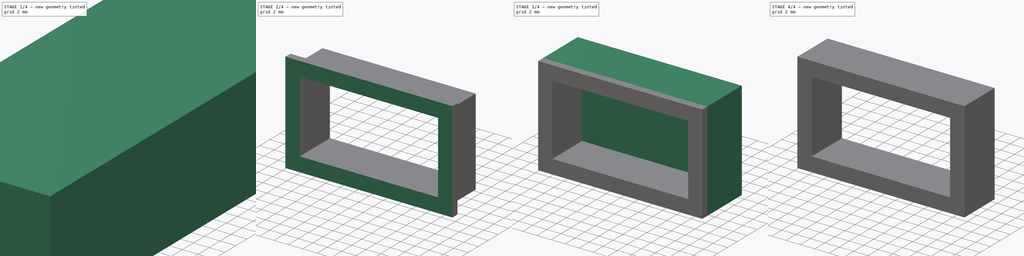
[diagram: build sequence overview — one tinted view per stage of 4, left to right]
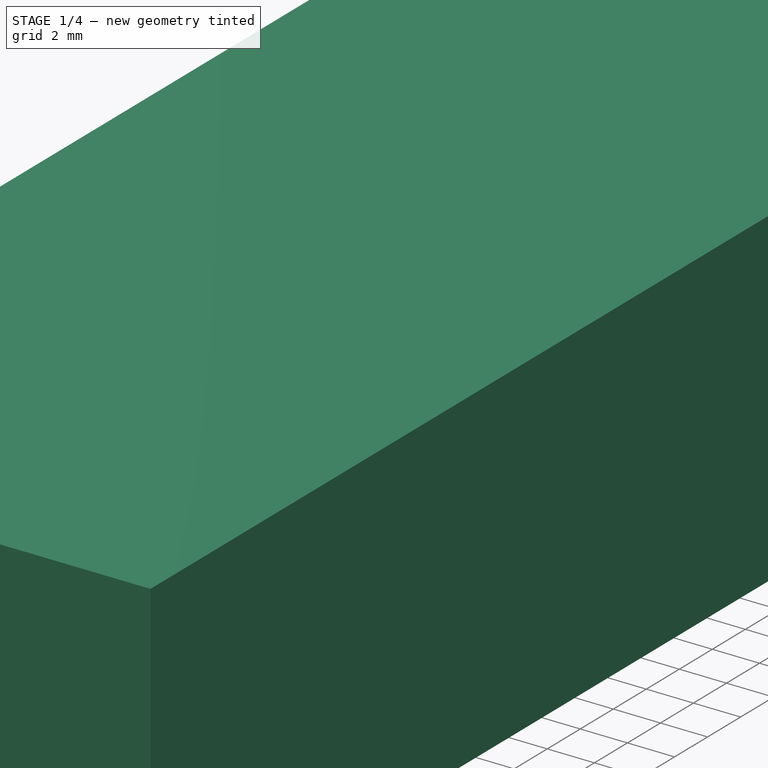
[diagram: stage 1 of 4 — iso view after this stage's code; geometry added in this stage tinted green]
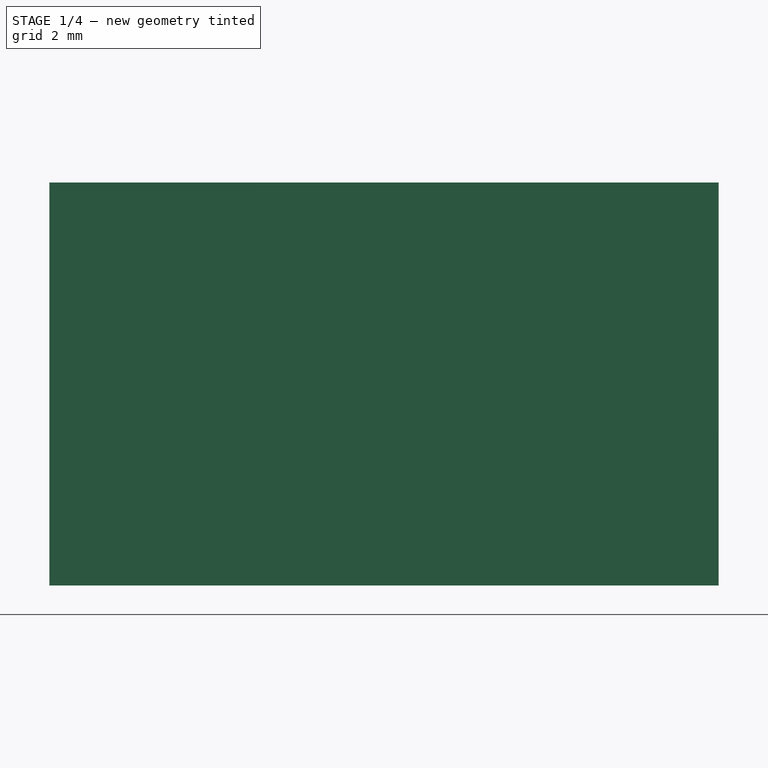
[diagram: stage 1 of 4 — front view after this stage's code; geometry added in this stage tinted green]
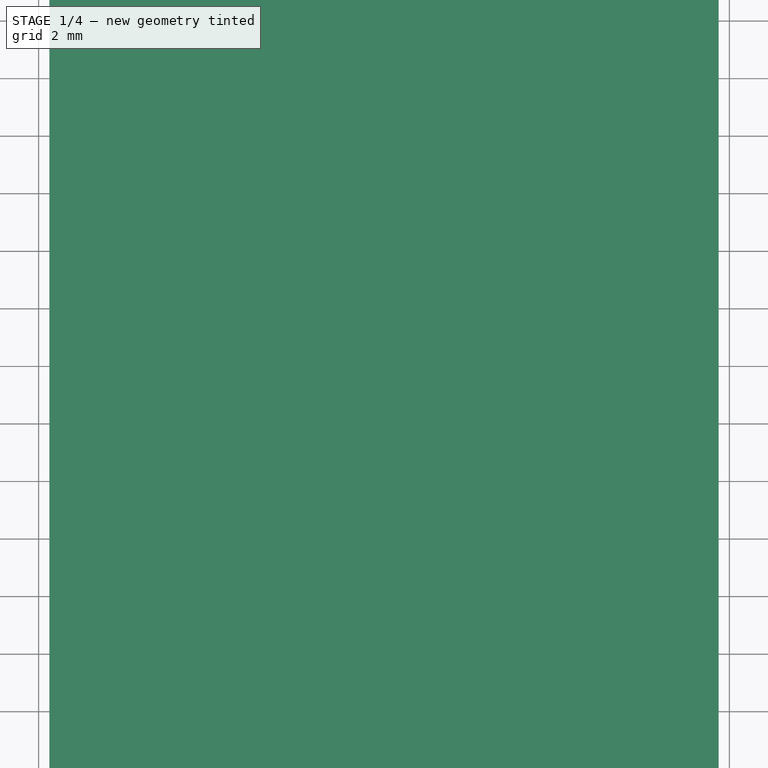
[diagram: stage 1 of 4 — top view after this stage's code; geometry added in this stage tinted green]
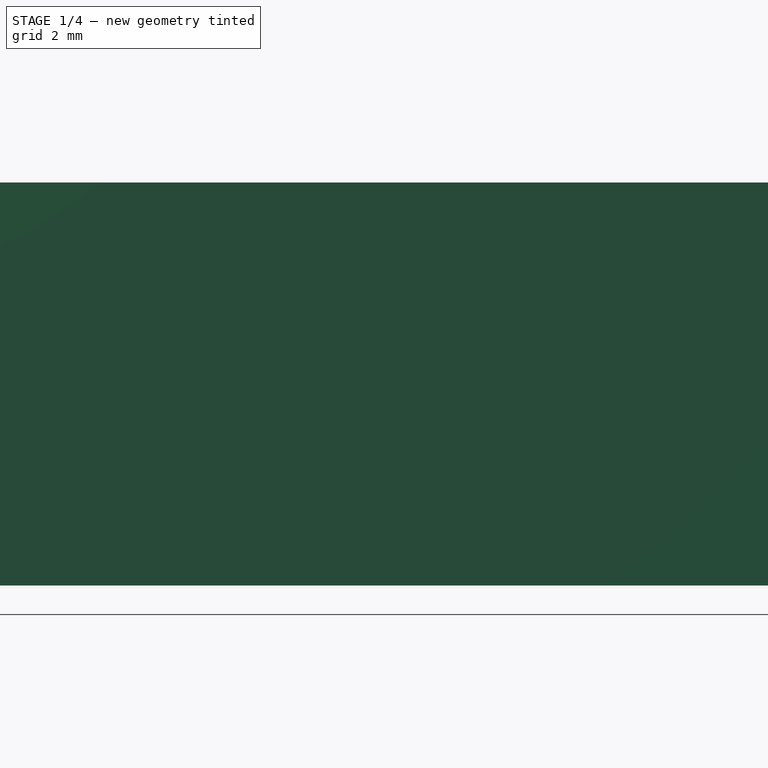
[diagram: stage 1 of 4 — right view after this stage's code; geometry added in this stage tinted green]
FCSTD DOCUMENT  (FreeCAD 1.1R39288 (Git))
Label:  корпус-(тест)
License: All rights reserved
LicenseURL: https://en.wikipedia.org/wiki/All_rights_reserved
objects: Sketcher::SketchObject×6, Part::FeaturePython×4, PartDesign::Pad×3, PartDesign::Pocket×3, PartDesign::Body×2, Part::Plane×2, PartDesign::Thickness×1
note: 41 computed .brp shape members not serialized (recipe doc carries the construction recipe); baked Part::Feature solids carry a one-line shape summary decoded from their .brp

FEATURE [PartDesign::Body] Body002  label="USB"
  AllowCompound = false
  Group = -> [Sketch003,Pad003,Sketch004,Pad004,Sketch005,Pocket]
  Origin = -> Origin002
  Tip = -> Pocket
FEATURE [Sketcher::SketchObject] Sketch007  label="Брусок"
  ArcFitTolerance = 1e-06
  AttachmentOffset = pos=(0,0,2) rot=(0,0,1;0rad)
  AttachmentSupport = -> [XZ_Plane004]
  FullyConstrained = true
  MakeInternals = false
  MapMode = 5
  Placement = pos=(0,-2,4e-16) rot=(1,0,0;1.5708rad)
  sketch-geometry (4):
    g0: LineSegment StartX=-11.625 StartY=7 StartZ=0 EndX=-11.625 EndY=-7 EndZ=0
    g1: LineSegment StartX=-11.625 StartY=-7 StartZ=0 EndX=11.625 EndY=-7 EndZ=0
    g2: LineSegment StartX=11.625 StartY=-7 StartZ=0 EndX=11.625 EndY=7 EndZ=0
    g3: LineSegment StartX=11.625 StartY=7 StartZ=0 EndX=-11.625 EndY=7 EndZ=0
  constraints (11):
    c: Coincident(g0,g1)
    c: Coincident(g1,g2)
    c: Coincident(g2,g3)
    c: Coincident(g3,g0)
    c: Vertical(g0)
    c: Vertical(g2)
    c: Horizontal(g1)
    c: Horizontal(g3)
    c: DistanceX(g3,g3) = 23.25
    c: DistanceY(g0,g0) = 14
    c: Symmetric(g0,g2,g-1)
FEATURE [PartDesign::Pad] Pad005  label="Выдавливание002"
  Direction = (0,-1,2e-16)
  Length = 61.5
  Length2 = 10
  Placement = pos=(0,0,0) rot=(1,0,0;1.5708rad)
  Profile = -> Sketch007
  ReferenceAxis = -> Sketch007 [N_Axis]
  Refine = true
  Suppressed = false
  Type = 0
FEATURE [PartDesign::Thickness] Thickness  label="Полый брусок"
  Base = -> Pad005 [Face5]
  BaseFeature = -> Pad005
  Intersection = false
  Join = 1
  Mode = 0
  Refine = true
  Reversed = true
  SupportTransform = false
  Suppressed = false
  Value = 2
FEATURE [Sketcher::SketchObject] Sketch008  label="Профиль соеденения"
  ArcFitTolerance = 1e-06
  AttachmentSupport = -> [Thickness]
  ExternalGeometry = -> [Thickness]
  FullyConstrained = true
  MakeInternals = false
  MapMode = 5
  Placement = pos=(0,-2,5e-16) rot=(0,0.707107,0.707107;3.14159rad)
  sketch-geometry (10):
    g0: LineSegment StartX=-11.625 StartY=7 StartZ=0 EndX=-11.625 EndY=-7 EndZ=0
    g1: LineSegment StartX=-11.625 StartY=-7 StartZ=0 EndX=11.625 EndY=-7 EndZ=0
    g2: LineSegment StartX=11.625 StartY=-7 StartZ=0 EndX=11.625 EndY=7 EndZ=0
    g3: LineSegment StartX=11.625 StartY=7 StartZ=0 EndX=-11.625 EndY=7 EndZ=0
    g4: LineSegment StartX=-10.665 StartY=6.04 StartZ=0 EndX=-10.665 EndY=-6.04 EndZ=0
    g5: LineSegment StartX=-10.665 StartY=-6.04 StartZ=0 EndX=10.665 EndY=-6.04 EndZ=0
    g6: LineSegment StartX=10.665 StartY=-6.04 StartZ=0 EndX=10.665 EndY=6.04 EndZ=0
    g7: LineSegment StartX=10.665 StartY=6.04 StartZ=0 EndX=-10.665 EndY=6.04 EndZ=0
    g8: LineSegment [constr] StartX=-11.625 StartY=6.04 StartZ=0 EndX=-10.665 EndY=6.04 EndZ=0
    g9: LineSegment [constr] StartX=-10.665 StartY=7 StartZ=0 EndX=-10.665 EndY=6.04 EndZ=0
  constraints (27):
    c: Coincident(g0,g1)
    c: Coincident(g1,g2)
    c: Coincident(g2,g3)
    c: Coincident(g3,g0)
    c: Vertical(g0)
    c: Vertical(g2)
    c: Horizontal(g1)
    c: Horizontal(g3)
    c: Symmetric(g0,g1,g-1)
    c: Coincident(g1,g-4)
    c: Coincident(g4,g5)
    c: Coincident(g5,g6)
    c: Coincident(g6,g7)
    c: Coincident(g7,g4)
    c: Vertical(g4)
    c: Vertical(g6)
    c: Horizontal(g5)
    c: Horizontal(g7)
    c: Symmetric(g4,g5,g-1)
    c: PointOnObject(g8,g0)
    c: Coincident(g8,g4)
    c: Horizontal(g8)
    c: PointOnObject(g9,g3)
    c: Coincident(g9,g4)
    c: Vertical(g9)
    c: Equal(g8,g9)
    c: DistanceX(g8,g8) = 0.96
FEATURE [PartDesign::Pocket] Pocket001  label="Вырез профиля крепления"
  BaseFeature = -> Thickness
  Direction = (0,-1,2e-16)
  Length = 5
  Length2 = 5
  Profile = -> Sketch008
  ReferenceAxis = -> Sketch008 [N_Axis]
  Refine = true
  Suppressed = false
  Type = 0
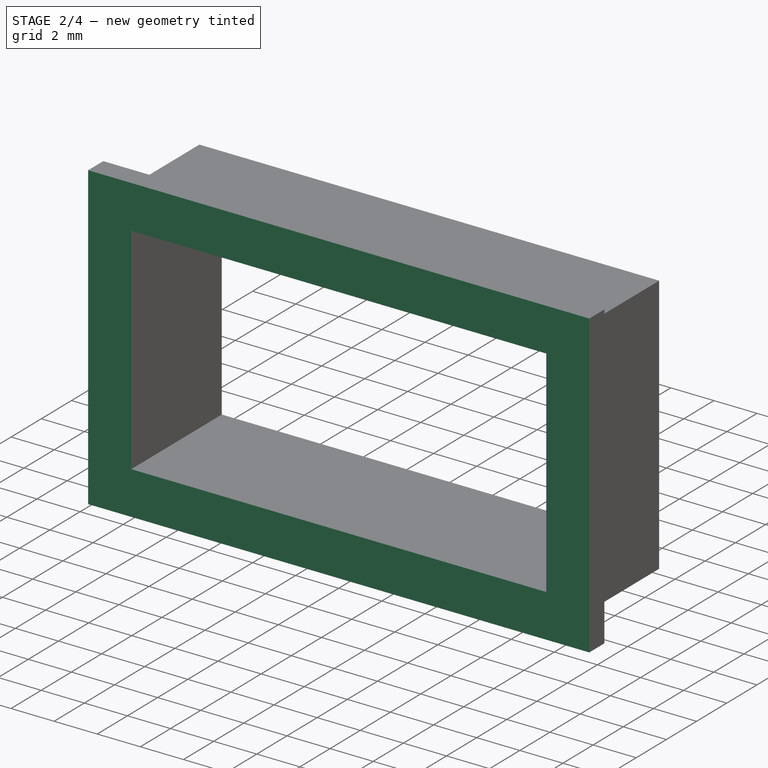
[diagram: stage 2 of 4 — iso view after this stage's code; geometry added in this stage tinted green]
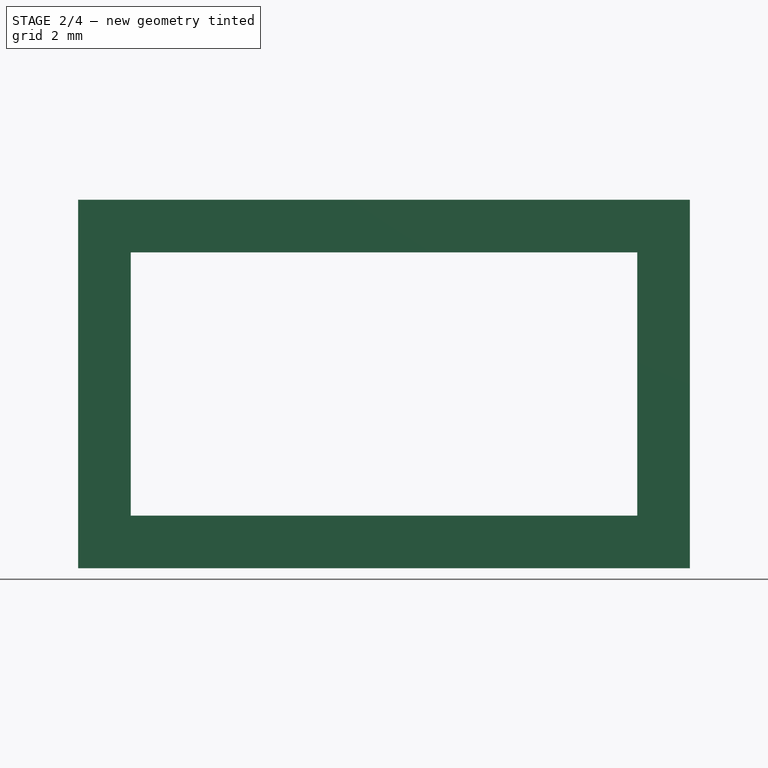
[diagram: stage 2 of 4 — front view after this stage's code; geometry added in this stage tinted green]
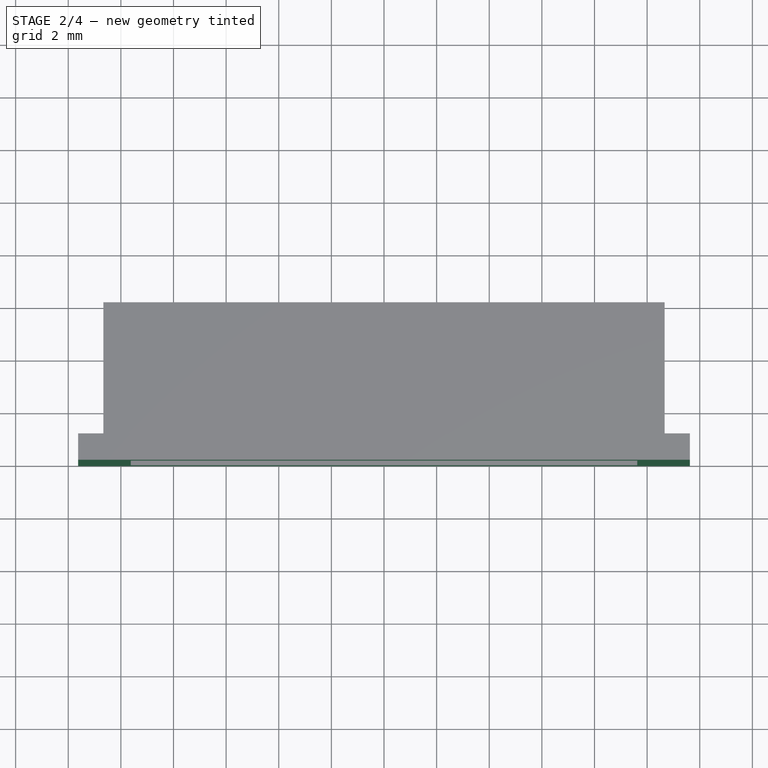
[diagram: stage 2 of 4 — top view after this stage's code; geometry added in this stage tinted green]
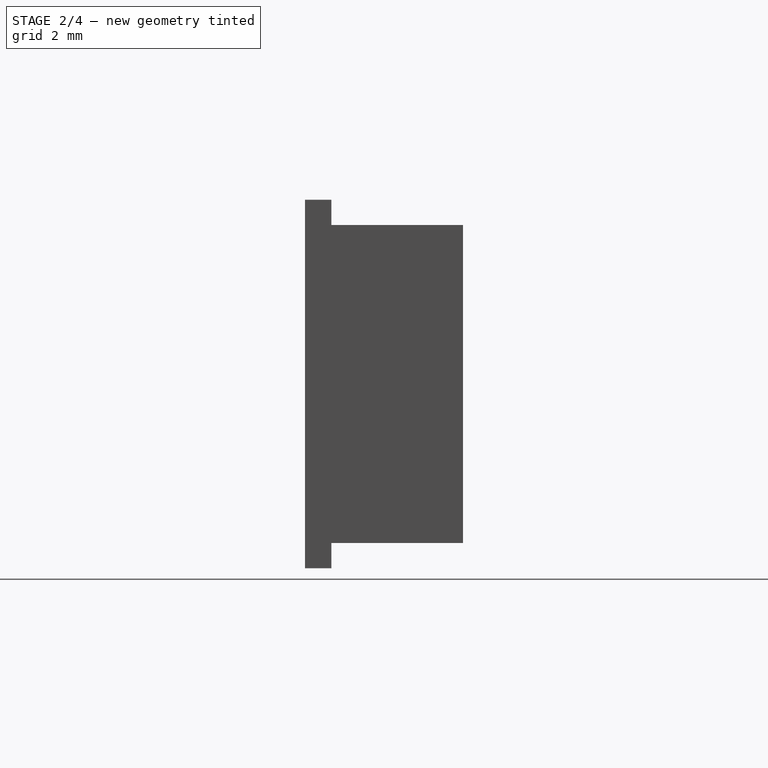
[diagram: stage 2 of 4 — right view after this stage's code; geometry added in this stage tinted green]
FEATURE [Sketcher::SketchObject] Sketch009  label="Профиль антенны"
  ArcFitTolerance = 1e-06
  AttachmentSupport = -> [Pocket001]
  FullyConstrained = true
  MakeInternals = false
  MapMode = 5
  Placement = pos=(0,-63.5,1.52e-14) rot=(1,0,0;1.5708rad)
  sketch-geometry (1):
    g0: Circle CenterX=0 CenterY=0 CenterZ=0 NormalX=0 NormalY=0 NormalZ=1 AngleXU=0 Radius=3.3
  constraints (2):
    c: Coincident(g0,g-1)
    c: Diameter(g0) = 6.6
FEATURE [PartDesign::Pocket] Pocket002  label="Вырез профиля антенны"
  BaseFeature = -> Pocket001
  Direction = (0,1,-2e-16)
  Length = 5
  Length2 = 5
  Profile = -> Sketch009
  ReferenceAxis = -> Sketch009 [N_Axis]
  Refine = true
  Suppressed = false
  Type = 1
FEATURE [Part::FeaturePython] Slice001  # WARN: FeaturePython — macro-defined, semantics opaque (R4)
  Base = -> Body004
  Mode = 1
  Tolerance = 0
  Tools = -> [Plane001]
FEATURE [Part::FeaturePython] Slice001_child0  label="Slice001.0"  # WARN: FeaturePython — macro-defined, semantics opaque (R4)
  Base = -> Slice001
  FilterType = 1
  Invert = false
  OverrideMaxVal = 0
  WindowFrom = 80
  WindowTo = 100
  items = 0
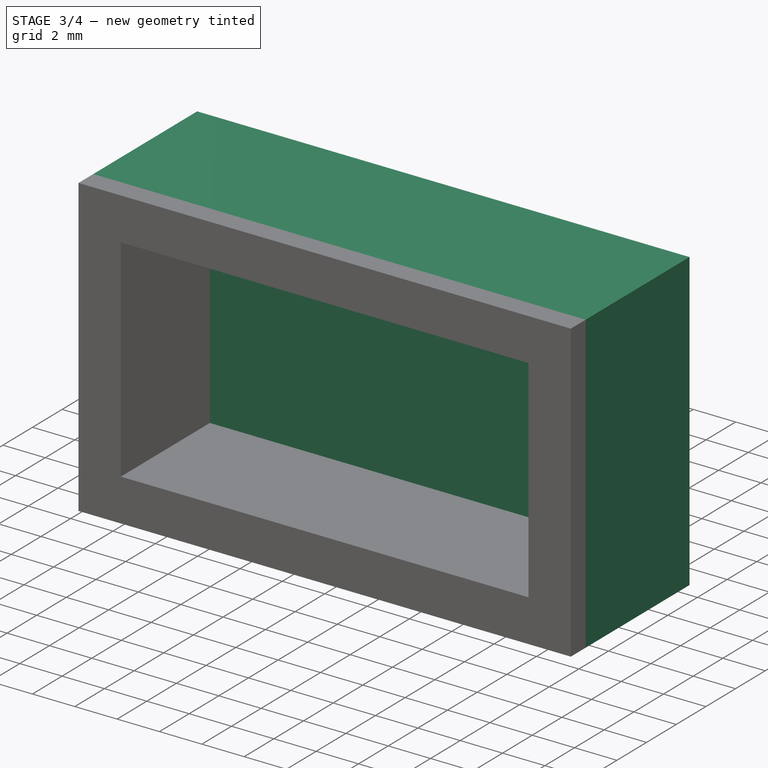
[diagram: stage 3 of 4 — iso view after this stage's code; geometry added in this stage tinted green]
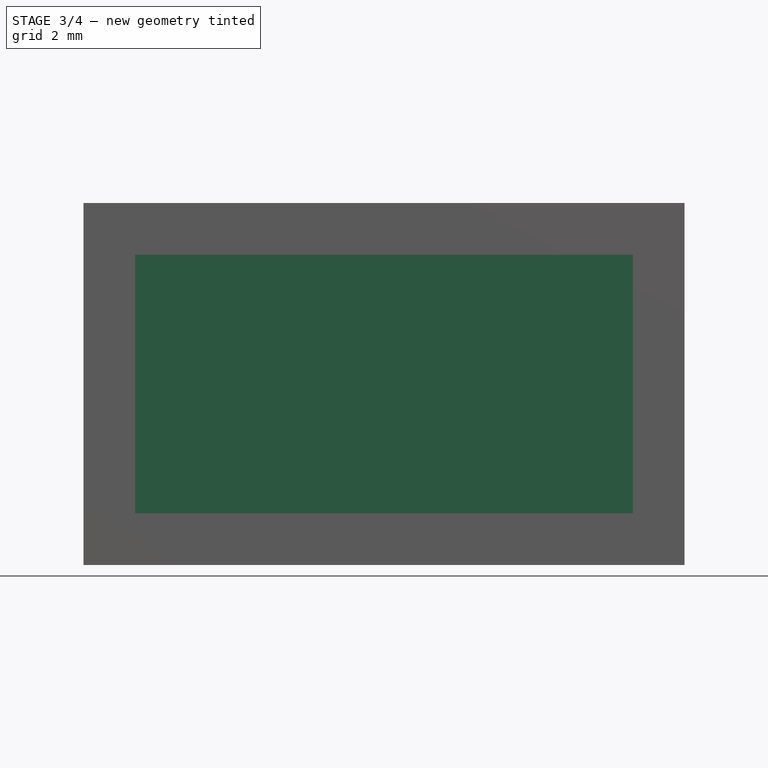
[diagram: stage 3 of 4 — front view after this stage's code; geometry added in this stage tinted green]
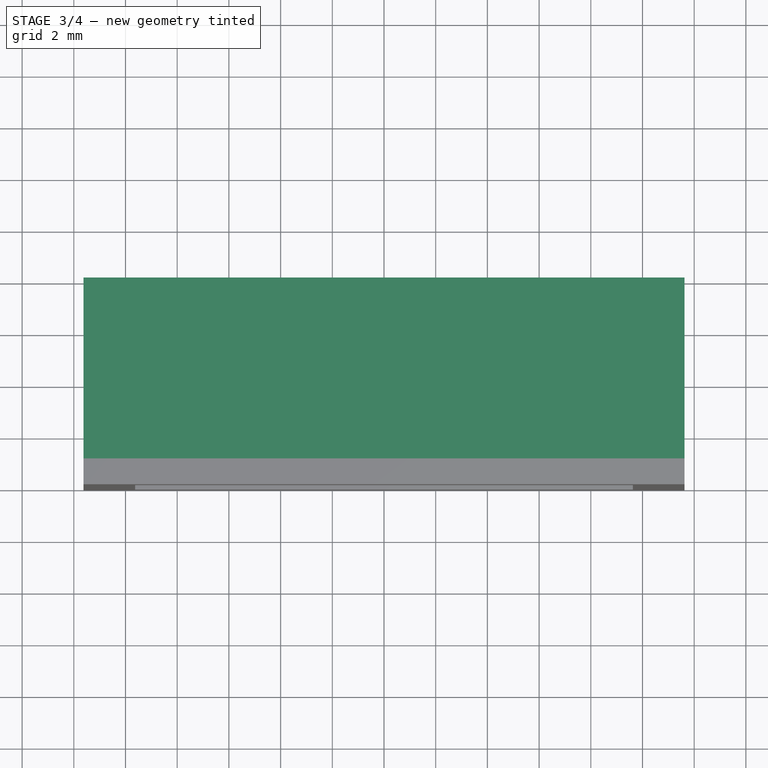
[diagram: stage 3 of 4 — top view after this stage's code; geometry added in this stage tinted green]
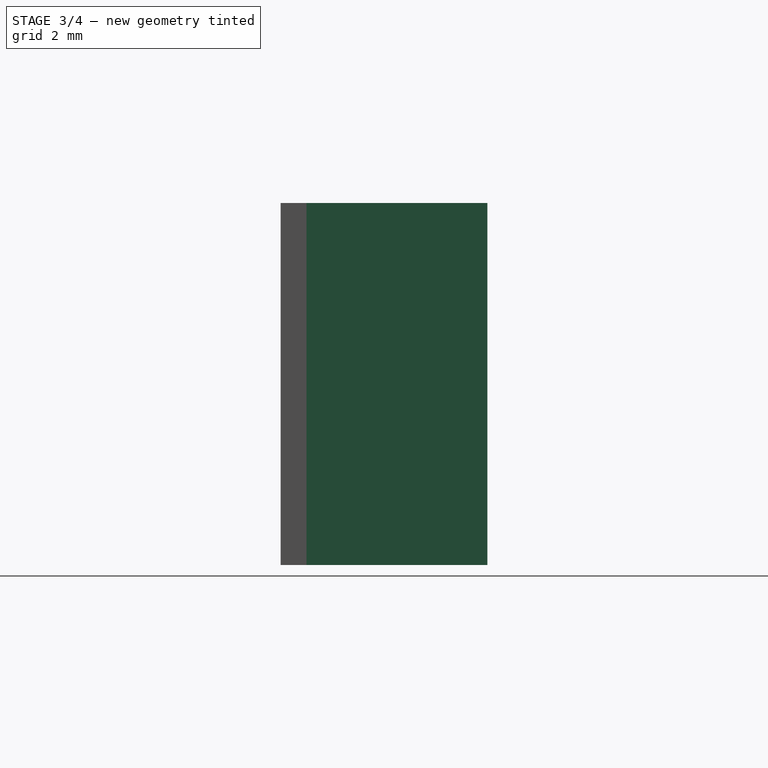
[diagram: stage 3 of 4 — right view after this stage's code; geometry added in this stage tinted green]
FEATURE [Sketcher::SketchObject] Sketch003  label="Вид сверху"
  ArcFitTolerance = 1e-06
  AttachmentSupport = -> [XY_Plane002]
  FullyConstrained = false
  MakeInternals = false
  MapMode = 5
  sketch-geometry (12):
    g0: LineSegment [constr] StartX=-9.625 StartY=0 StartZ=0 EndX=-9.625 EndY=-0.788468 EndZ=0
    g1: LineSegment [constr] StartX=-9.625 StartY=-0.788468 StartZ=0 EndX=9.625 EndY=-0.788468 EndZ=0
    g2: LineSegment [constr] StartX=9.625 StartY=-0.788468 StartZ=0 EndX=9.625 EndY=-8e-16 EndZ=0
    g3: LineSegment [constr] StartX=9.625 StartY=-8e-16 StartZ=0 EndX=-9.625 EndY=0 EndZ=0
    g4: LineSegment StartX=11.625 StartY=0 StartZ=0 EndX=-11.625 EndY=0 EndZ=0
    g5: LineSegment StartX=-11.625 StartY=0 StartZ=0 EndX=-11.625 EndY=-7 EndZ=0
    g6: LineSegment StartX=-11.625 StartY=-7 StartZ=0 EndX=-10.625 EndY=-7 EndZ=0
    g7: LineSegment StartX=-10.625 StartY=-2 StartZ=0 EndX=10.625 EndY=-2 EndZ=0
    g8: LineSegment StartX=10.625 StartY=-2 StartZ=0 EndX=10.625 EndY=-7 EndZ=0
    g9: LineSegment StartX=10.625 StartY=-7 StartZ=0 EndX=11.625 EndY=-7 EndZ=0
    g10: LineSegment StartX=11.625 StartY=-7 StartZ=0 EndX=11.625 EndY=0 EndZ=0
    g11: LineSegment StartX=-10.625 StartY=-2 StartZ=0 EndX=-10.625 EndY=-7 EndZ=0
  constraints (32):
    c: Coincident(g0,g1)
    c: Coincident(g1,g2)
    c: Coincident(g2,g3)
    c: Coincident(g3,g0)
    c: Vertical(g0)
    c: Vertical(g2)
    c: Distance(g0,g2) = 19.25
    c: PointOnObject(g0,g-1)
    c: Symmetric(g0,g2,g-1)
    c: PointOnObject(g4,g-1)
    c: PointOnObject(g4,g-1)
    c: Coincident(g4,g5)
    c: Coincident(g5,g6)
    c: Coincident(g7,g8)
    c: Coincident(g8,g9)
    c: Coincident(g9,g10)
    c: Coincident(g10,g4)
    c: Coincident(g11,g7)
    c: Coincident(g11,g6)
    c: Vertical(g11)
    c: Horizontal(g6)
    c: Vertical(g5)
    c: Horizontal(g6,g8)
    c: Horizontal(g9)
    c: Vertical(g10)
    c: Distance(g6,g6) = 1
    c: Equal(g9,g6)
    c: Equal(g11,g8)
    c: Distance(g11,g11) = 5
    c: Distance(g0,g4) = 2
    c: DistanceY(g7,g4) = 2
    c: Symmetric(g7,g7,g-2)
FEATURE [PartDesign::Pad] Pad003  label="Выдавливание"
  Direction = (0,0,1)
  Length = 7
  Length2 = 7
  Profile = -> Sketch003
  ReferenceAxis = -> Sketch003 [N_Axis]
  Refine = true
  Suppressed = false
  Type = 4
FEATURE [Sketcher::SketchObject] Sketch004  label="Вид сбоку"
  ArcFitTolerance = 1e-06
  AttachmentSupport = -> [Pad003]
  ExternalGeometry = -> [Pad003]
  FullyConstrained = true
  MakeInternals = false
  MapMode = 5
  Placement = pos=(11.625,0,0) rot=(0.57735,0.57735,0.57735;2.0944rad)
  sketch-geometry (8):
    g0: LineSegment StartX=-7 StartY=7 StartZ=0 EndX=-7 EndY=6 EndZ=0
    g1: LineSegment StartX=-7 StartY=6 StartZ=0 EndX=0 EndY=6 EndZ=0
    g2: LineSegment StartX=0 StartY=6 StartZ=0 EndX=0 EndY=7 EndZ=0
    g3: LineSegment StartX=0 StartY=7 StartZ=0 EndX=-7 EndY=7 EndZ=0
    g4: LineSegment StartX=-7 StartY=-7 StartZ=0 EndX=0 EndY=-7 EndZ=0
    g5: LineSegment StartX=0 StartY=-7 StartZ=0 EndX=0 EndY=-6 EndZ=0
    g6: LineSegment StartX=0 StartY=-6 StartZ=0 EndX=-7 EndY=-6 EndZ=0
    g7: LineSegment StartX=-7 StartY=-6 StartZ=0 EndX=-7 EndY=-7 EndZ=0
  constraints (22):
    c: Coincident(g0,g1)
    c: Coincident(g1,g2)
    c: Coincident(g2,g3)
    c: Coincident(g3,g0)
    c: Vertical(g0)
    c: Vertical(g2)
    c: Horizontal(g1)
    c: Horizontal(g3)
    c: Coincident(g0,g-3)
    c: PointOnObject(g1,g-2)
    c: Coincident(g4,g5)
    c: Coincident(g5,g6)
    c: Coincident(g6,g7)
    c: Coincident(g7,g4)
    c: Horizontal(g4)
    c: Horizontal(g6)
    c: Vertical(g5)
    c: Vertical(g7)
    c: Coincident(g4,g-4)
    c: PointOnObject(g5,g-2)
    c: Equal(g7,g0)
    c: DistanceY(g0,g0) = 1
FEATURE [PartDesign::Pad] Pad004  label="Выдавливание001"
  BaseFeature = -> Pad003
  Direction = (1,0,0)
  Length = 10
  Length2 = 10
  Profile = -> Sketch004
  ReferenceAxis = -> Sketch004 [N_Axis]
  Refine = true
  Reversed = true
  Suppressed = false
  Type = 1
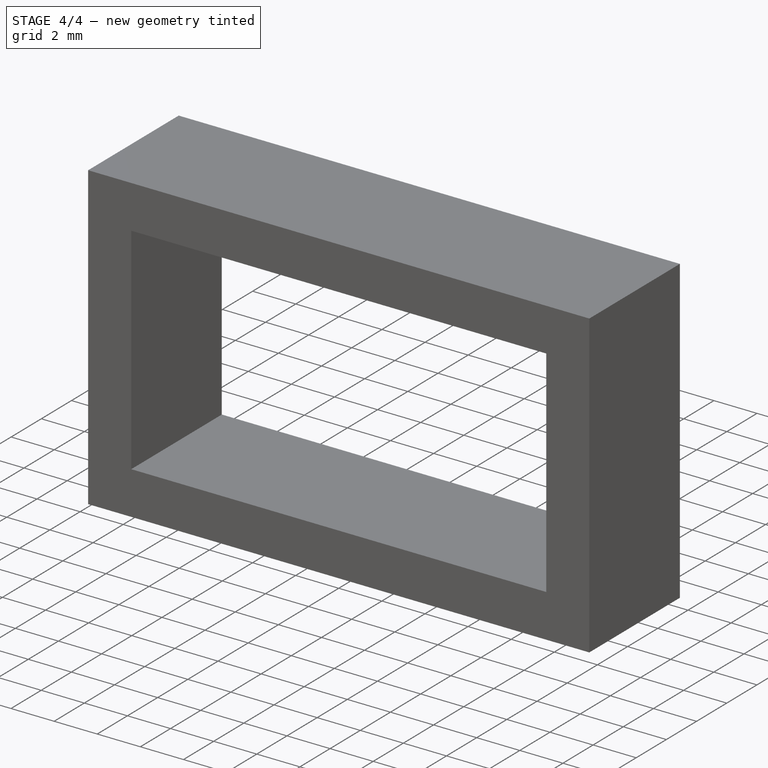
[diagram: stage 4 of 4 — iso view after this stage's code; geometry added in this stage tinted green]
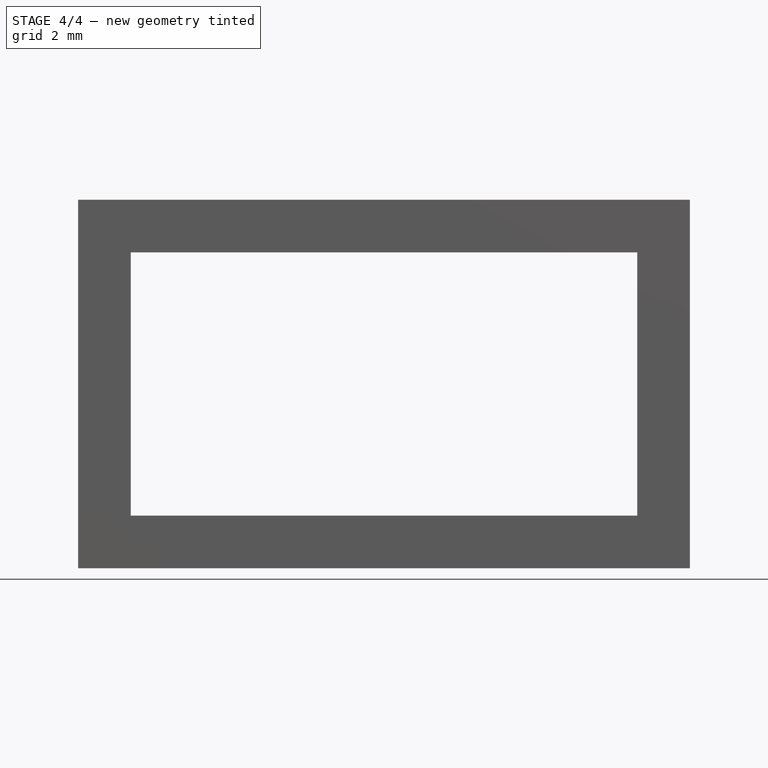
[diagram: stage 4 of 4 — front view after this stage's code; geometry added in this stage tinted green]
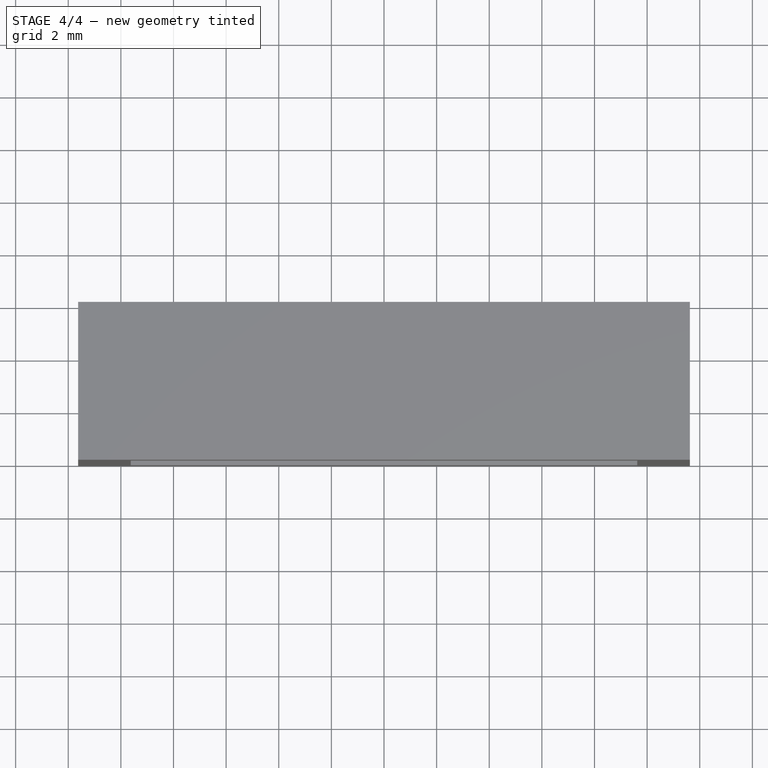
[diagram: stage 4 of 4 — top view after this stage's code; geometry added in this stage tinted green]
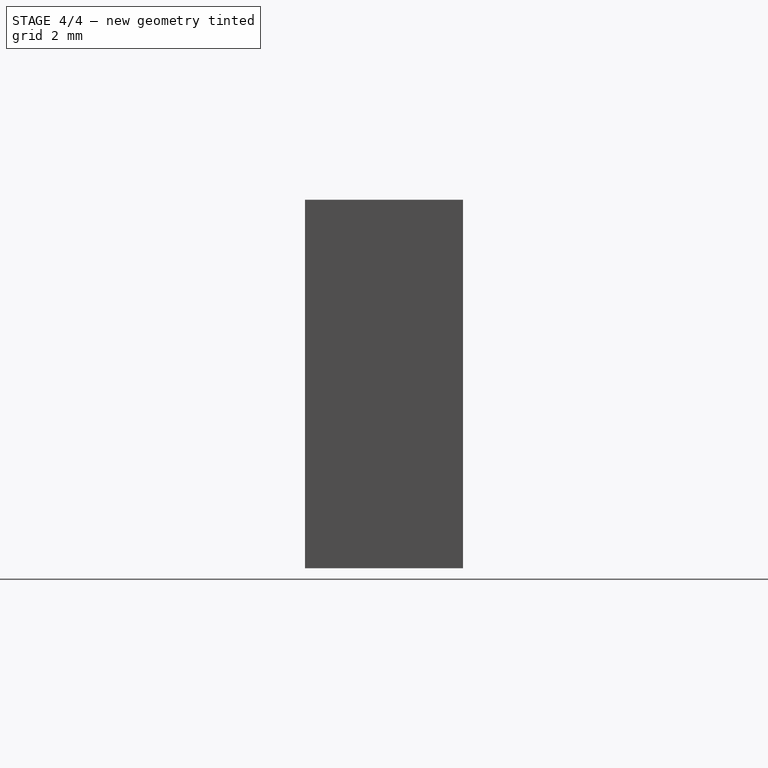
[diagram: stage 4 of 4 — right view after this stage's code; geometry added in this stage tinted green]
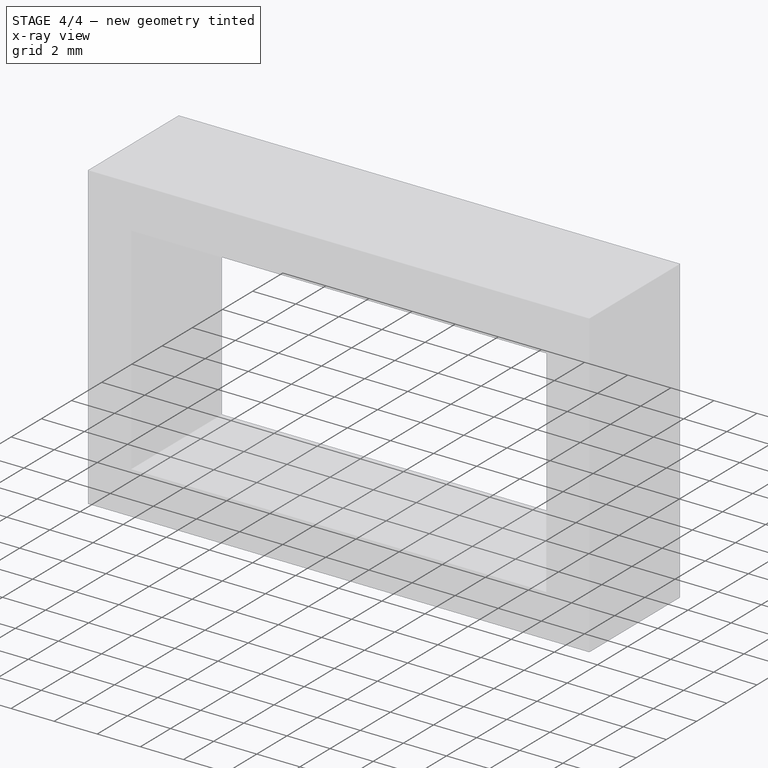
[diagram: stage 4 of 4 — x-ray composite at the iso view; earlier geometry ghosted, this stage's added geometry solid]
FEATURE [Sketcher::SketchObject] Sketch005  label="Профиль USB"
  ArcFitTolerance = 1e-06
  AttachmentSupport = -> [Pad004]
  ExternalGeometry = -> [Pad004]
  FullyConstrained = true
  MakeInternals = false
  MapMode = 5
  Placement = pos=(0,0,0) rot=(0,0.707107,0.707107;3.14159rad)
  sketch-geometry (4):
    g0: LineSegment StartX=-6.175 StartY=2.375 StartZ=0 EndX=-6.175 EndY=-2.375 EndZ=0
    g1: LineSegment StartX=-6.175 StartY=-2.375 StartZ=0 EndX=6.175 EndY=-2.375 EndZ=0
    g2: LineSegment StartX=6.175 StartY=-2.375 StartZ=0 EndX=6.175 EndY=2.375 EndZ=0
    g3: LineSegment StartX=6.175 StartY=2.375 StartZ=0 EndX=-6.175 EndY=2.375 EndZ=0
  constraints (11):
    c: Coincident(g0,g1)
    c: Coincident(g1,g2)
    c: Coincident(g2,g3)
    c: Coincident(g3,g0)
    c: Vertical(g0)
    c: Vertical(g2)
    c: Horizontal(g1)
    c: Horizontal(g3)
    c: Symmetric(g0,g1,g-1)
    c: DistanceX(g3,g3) = 12.35
    c: DistanceY(g0,g0) = 4.75
FEATURE [PartDesign::Pocket] Pocket  label="Вырез паза"
  BaseFeature = -> Pad004
  Direction = (0,-1,2e-16)
  Length = 5
  Length2 = 5
  Profile = -> Sketch005
  ReferenceAxis = -> Sketch005 [N_Axis]
  Refine = true
  Suppressed = false
  Type = 1
FEATURE [PartDesign::Body] Body004  label="Антенна"
  AllowCompound = false
  Group = -> [Sketch007,Pad005,Thickness,Sketch008,Pocket001,Sketch009,Pocket002]
  Origin = -> Origin004
  Tip = -> Pocket002
FEATURE [Part::Plane] Plane  label="Плоскость"
  AttacherType = Attacher::AttachEngine3D
  Length = 30
  Placement = pos=(-19,-2,15) rot=(-0.57735,-0.57735,0.57735;4.18879rad)
  Width = 40
FEATURE [Part::Plane] Plane001  label="Плоскость001"
  AttacherType = Attacher::AttachEngine3D
  Length = 30
  Placement = pos=(19,-8,-14) rot=(-0.57735,0.57735,-0.57735;4.18879rad)
  Width = 40
FEATURE [Part::FeaturePython] Slice  # WARN: FeaturePython — macro-defined, semantics opaque (R4)
  Base = -> Body002
  Mode = 1
  Tolerance = 0
  Tools = -> [Plane]
FEATURE [Part::FeaturePython] Slice_child0  label="Slice.0"  # WARN: FeaturePython — macro-defined, semantics opaque (R4)
  Base = -> Slice
  FilterType = 1
  Invert = false
  OverrideMaxVal = 0
  WindowFrom = 80
  WindowTo = 100
  items = 0
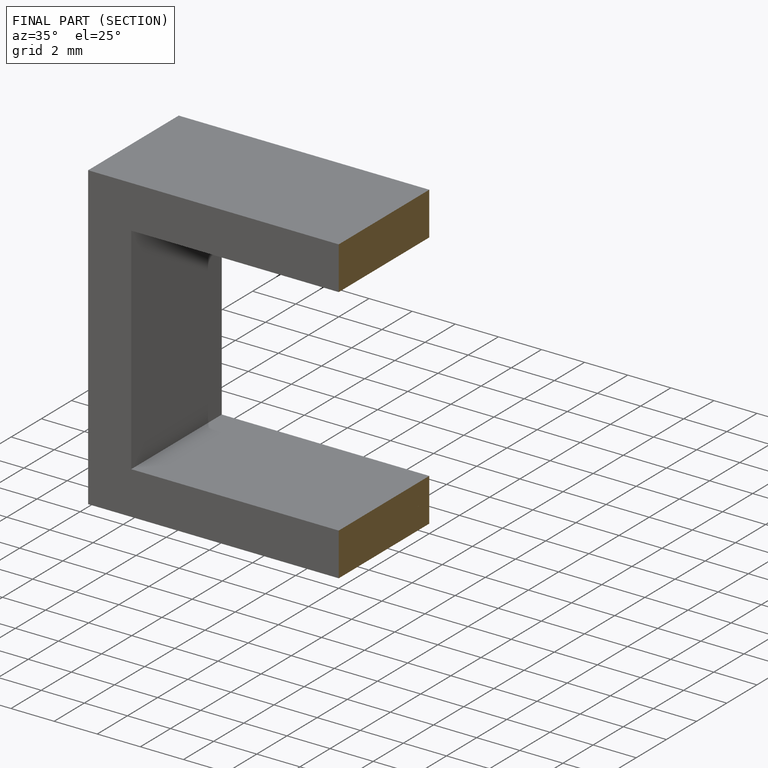
[diagram: finished part — half-section view (interior)]
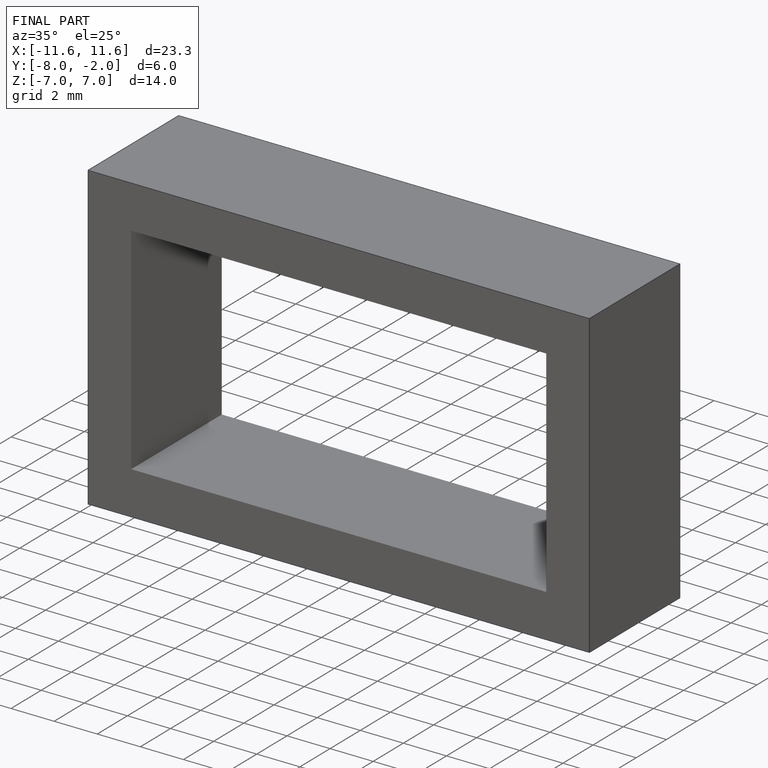
[diagram: finished part — iso view with bounding-box wireframe]
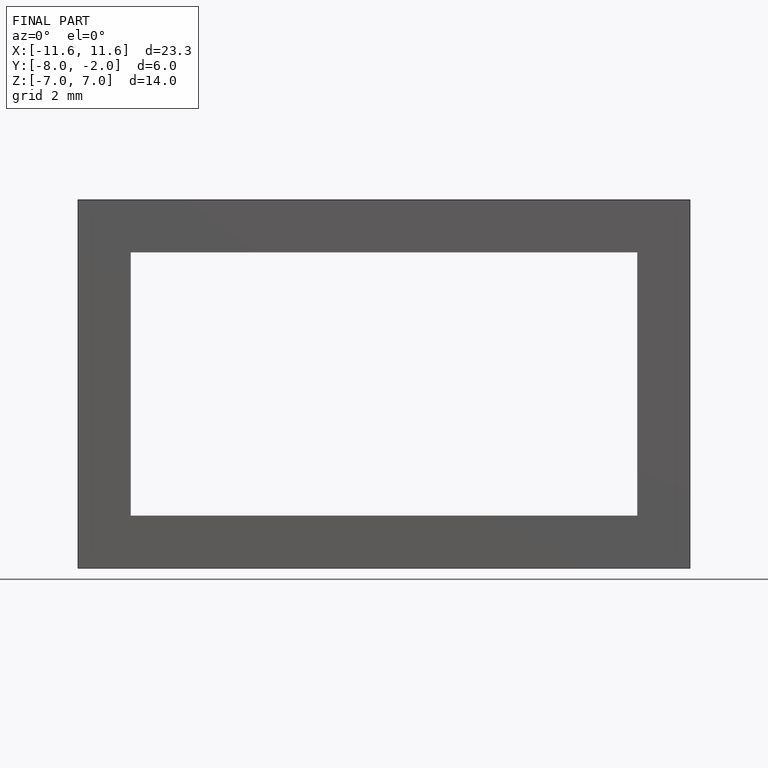
[diagram: finished part — front view with bounding-box wireframe]
